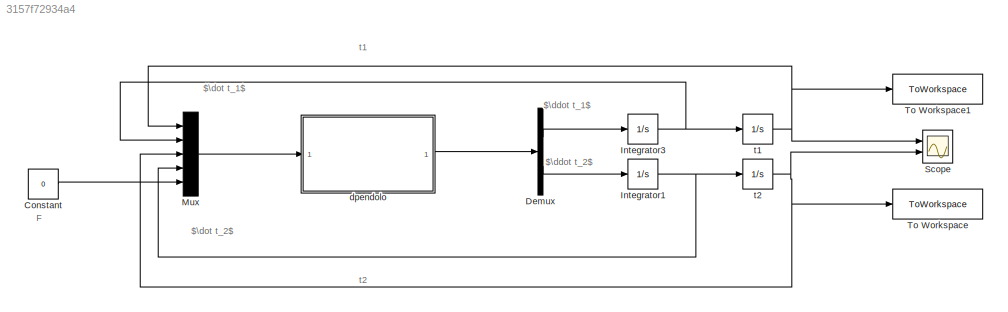
MODEL slx_3157f72934a4
KIND model
CONFIG AbsTol = auto
CONFIG EnableMultiTasking = off
CONFIG FixedStep = auto
CONFIG MaxStep = auto
CONFIG MinStep = auto
CONFIG RelTol = 1e-3
CONFIG SampleTimeConstraint = Unconstrained
CONFIG SolverName = ode23
CONFIG StartTime = 0.0
CONFIG StopTime = 10
BLOCK [Constant] Constant
  Value = 0
BLOCK [Demux] Demux
  Outputs = 2
  Ports = [1, 2]
BLOCK [Integrator] Integrator1
  Ports = [1, 1]
BLOCK [Integrator] Integrator3
  Ports = [1, 1]
BLOCK [Mux] Mux
  DisplayOption = bar
  Inputs = 5
  Ports = [5, 1]
BLOCK [Scope] Scope
  Floating = off
  NumInputPorts = 2
  Ports = [2]
  ScopeSpecificationString = Simulink.scopes.TimeScopeBlockCfg('CurrentConfiguration', extmgr.ConfigurationSet(extmgr.Configuration('Core','General UI',true),extmgr.Configuration('Core','Source UI',true),extmgr.Configuration('Sources','WiredSimulink',true),extmgr.Configuration('Visuals','Time Domain',true,'SerializedDisplays',{struct('MinYLimReal','-1.5863','MaxYLimReal','1.58306','YLabelReal','','MinYLimMag','0.00000','MaxYL...<+1394ch>
BLOCK [ToWorkspace] To Workspace
  FixptAsFi = on
  MaxDataPoints = inf
  Ports = [1]
  SampleTime = -1
  VariableName = t2
BLOCK [ToWorkspace] To Workspace1
  FixptAsFi = on
  MaxDataPoints = inf
  Ports = [1]
  SampleTime = -1
  VariableName = t1
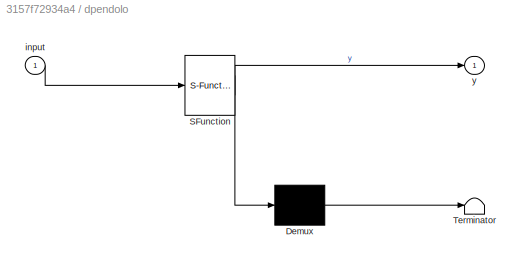
BLOCK [SubSystem] dpendolo
  ErrorFcn = Stateflow.Translate.translate
  PermitHierarchicalResolution = ExplicitOnly
  Ports = [1, 1]
  RequestExecContextInheritance = off
  SFBlockType = MATLAB Function
  TreatAsAtomicUnit = on
BLOCK [Demux] dpendolo/ Demux 
  Outputs = 1
  Ports = [1, 1]
BLOCK [S-Function] dpendolo/ SFunction 
  EnableBusSupport = on
  FunctionName = sf_sfun
  PortCounts = [1 2]
  Ports = [1, 2]
  SFcnIsStateOwnerBlock = off
  SFunctionDeploymentMode = off
  Tag = Stateflow S-Function 2
BLOCK [Terminator] dpendolo/ Terminator 
BLOCK [Inport] dpendolo/input
BLOCK [Outport] dpendolo/y
BLOCK [Integrator] t1
  InitialCondition = pi/4
  Ports = [1, 1]
BLOCK [Integrator] t2
  Ports = [1, 1]
ANNOTATION (root): $\dot t_1$
ANNOTATION (root): $\ddot t_1$
ANNOTATION (root): $\ddot t_2$
ANNOTATION (root): $\dot t_2$
ANNOTATION (root): F
ANNOTATION (root): t1
ANNOTATION (root): t2
LINE Constant:1 -> Mux:5
LINE Demux:1 -> Integrator3:1
LINE Demux:2 -> Integrator1:1
NET Integrator1:1 -> Mux:4, t2:1
NET Integrator3:1 -> Mux:2, t1:1
LINE Mux:1 -> dpendolo:1
LINE dpendolo:1 -> Demux:1
NET t1:1 -> Mux:1, Scope:1, To Workspace1:1
NET t2:1 -> Mux:3, Scope:2, To Workspace:1
note: NET lines group one-source signal fan-out (src -> all destinations, sorted); 1:1 wires keep LINE
CHART dpendolo states=1 transitions=1
  STATE_LABEL 'eML_blk_kernel()'
  STATE_LABEL 'SCRIPT:\nfunction y = dpendolo(input)\n\nm1 = 0.5;\nm2 = 0.5;\nL1 = 1;\nL2 = 1;\ng=9.81;\ny=[0;0];\n\nt1=input(1);\ndt1=input(2);\nt2 = input (3);\ndt2= input (4);\nF = input (5);\n\nA = [(m1+m2)*(L1^2), m2*L1*L2*cos(t2-t1);m2*L1*L2*cos(t2-t1), m2*L2^2];\nB = [F*L1*cos(t1)+m2*L1*L2*(dt2^2)*sin(t2-t1)-(m1+m2)*g*L1*sin(t1);-m2*L1*L2*dt1^2*sin(t2-t1)+F*L2*cos(t2)-m2*g*L2*sin(t2)];\n\ny = inv(A)*B;'
CHART  states=0 transitions=0
